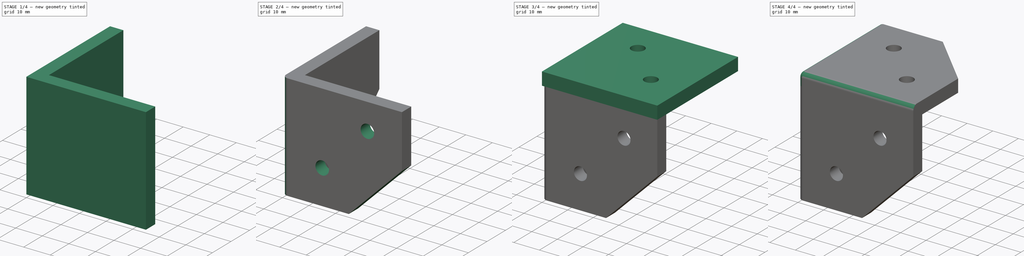
[diagram: build sequence overview — one tinted view per stage of 4, left to right]
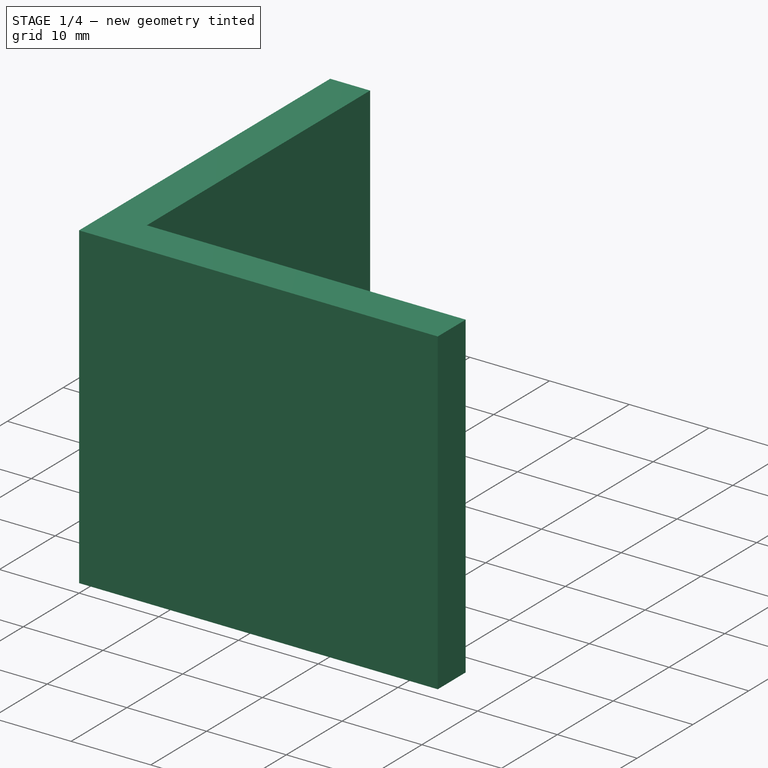
[diagram: stage 1 of 4 — iso view after this stage's code; geometry added in this stage tinted green]
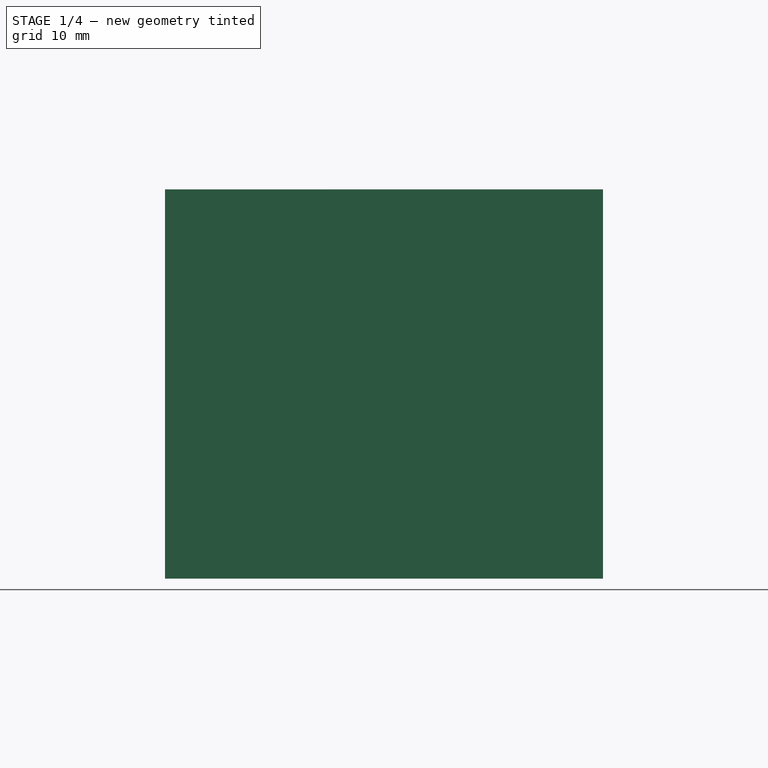
[diagram: stage 1 of 4 — front view after this stage's code; geometry added in this stage tinted green]
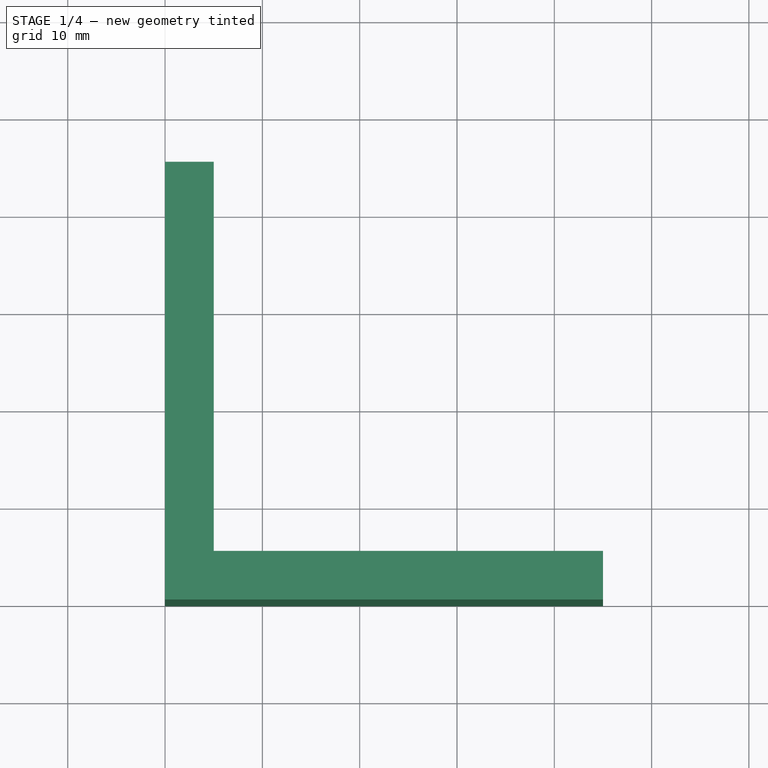
[diagram: stage 1 of 4 — top view after this stage's code; geometry added in this stage tinted green]
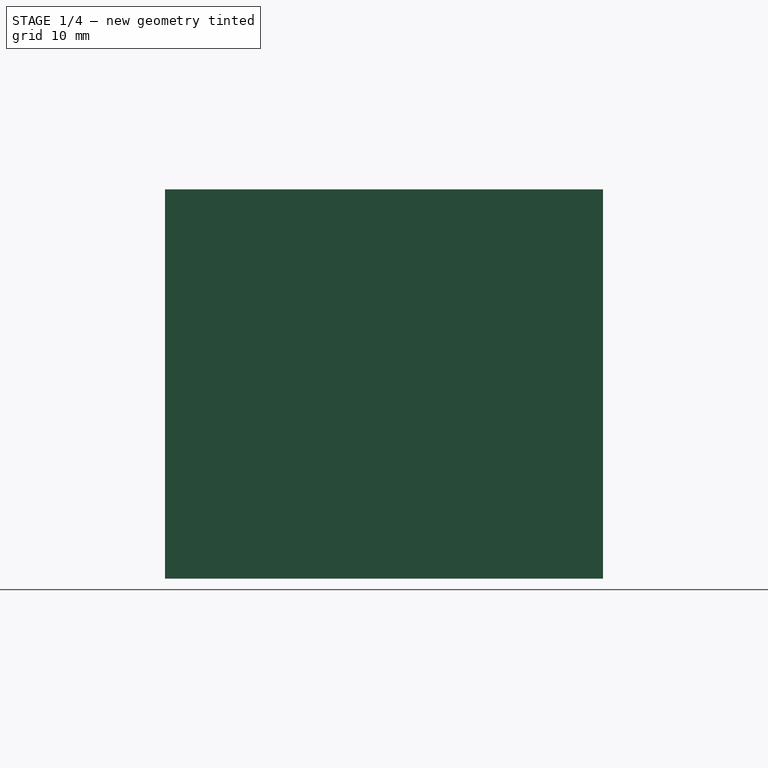
[diagram: stage 1 of 4 — right view after this stage's code; geometry added in this stage tinted green]
FCSTD DOCUMENT  (FreeCAD 0.16R6706 (Git))
Label: ends
License: All rights reserved
LicenseURL: http://en.wikipedia.org/wiki/All_rights_reserved
objects: Part::Box×3, Sketcher::SketchObject×3, PartDesign::Pocket×3, PartDesign::Fillet×3, PartDesign::Chamfer×2, Part::Cut×1
note: 18 computed .brp shape members not serialized (recipe doc carries the construction recipe); baked Part::Feature solids carry a one-line shape summary decoded from their .brp

FEATURE [Part::Box] Box001  label="Cube001"
  Height = 40
  Length = 45
  Placement = pos=(0,0,-40) rot=(0,0,1;0rad)
  Width = 45
FEATURE [Part::Box] Box002  label="Cube002"
  Height = 40
  Length = 45
  Placement = pos=(5,5,-40) rot=(0,0,1;0rad)
  Width = 45
FEATURE [Part::Cut] Cut
  Base = -> Box001
  Tool = -> Box002
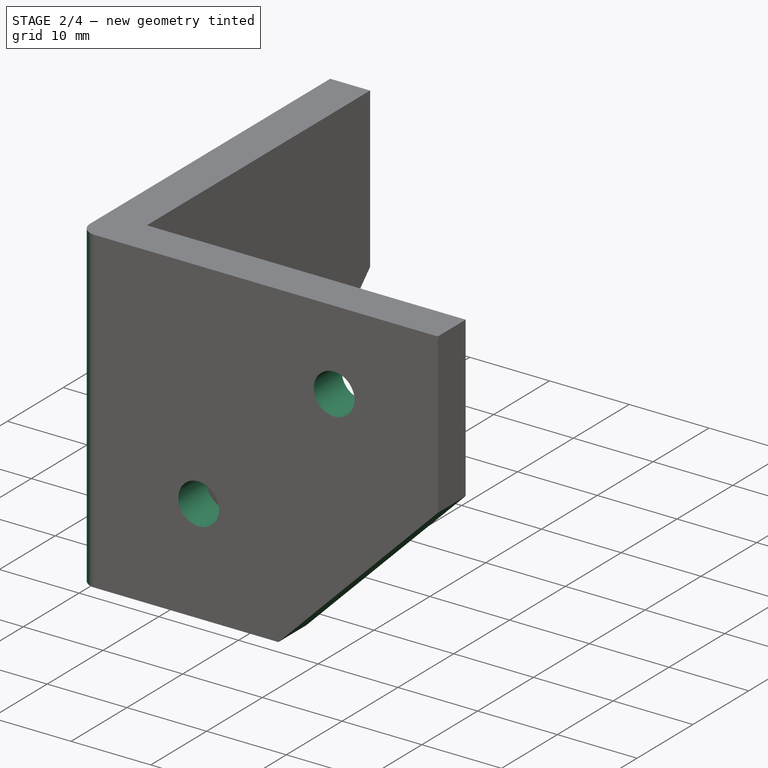
[diagram: stage 2 of 4 — iso view after this stage's code; geometry added in this stage tinted green]
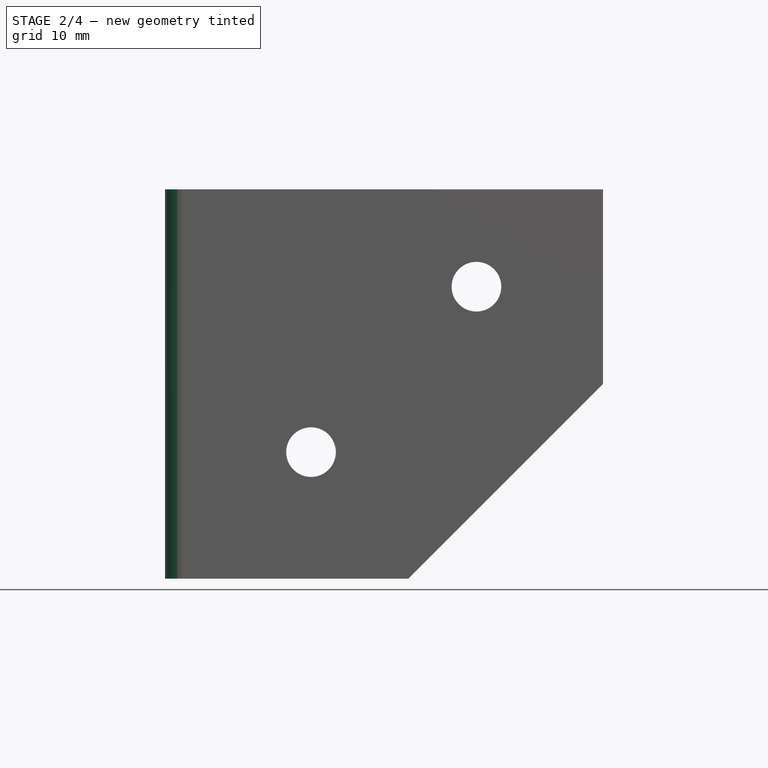
[diagram: stage 2 of 4 — front view after this stage's code; geometry added in this stage tinted green]
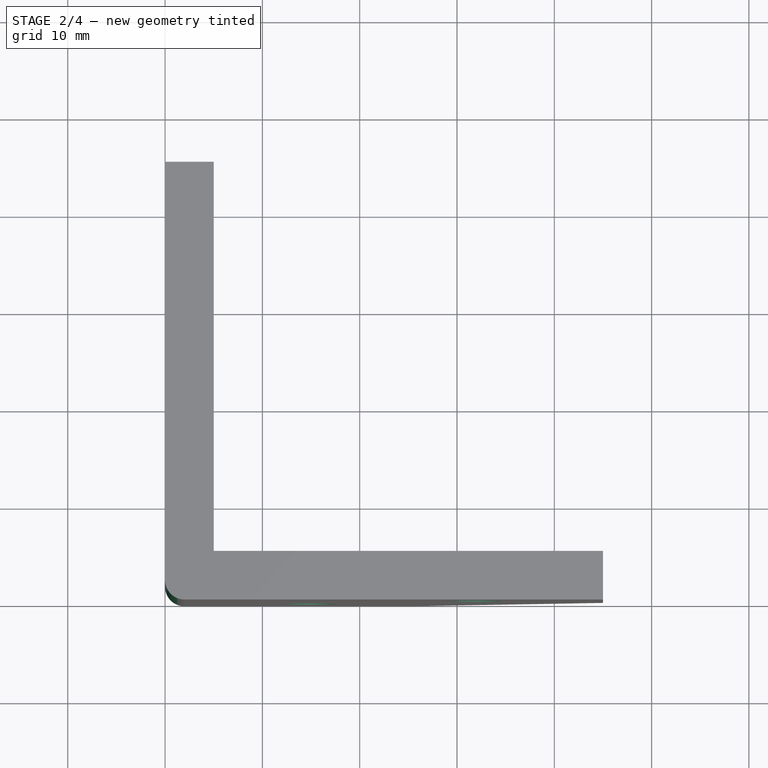
[diagram: stage 2 of 4 — top view after this stage's code; geometry added in this stage tinted green]
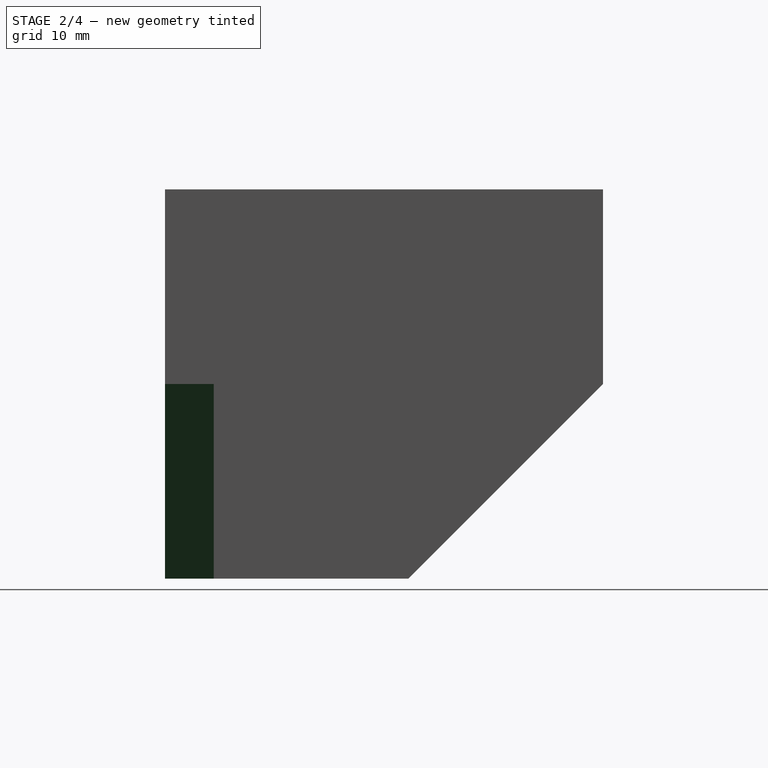
[diagram: stage 2 of 4 — right view after this stage's code; geometry added in this stage tinted green]
FEATURE [PartDesign::Fillet] Fillet002
  Base = -> Cut [Edge1]
  Radius = 2
FEATURE [PartDesign::Chamfer] Chamfer001
  Base = -> Fillet002 [Edge16,Edge13]
  Size = 20
FEATURE [Sketcher::SketchObject] Sketch
  Placement = pos=(0,0,0) rot=(1,0,0;1.5708rad)
  Support = -> Chamfer001 [Face8]
  sketch-geometry (2):
    g0: Circle CenterX=32 CenterY=-10 CenterZ=0 NormalX=0 NormalY=0 NormalZ=1 Radius=2.55
    g1: Circle CenterX=15 CenterY=-27 CenterZ=0 NormalX=0 NormalY=0 NormalZ=1 Radius=2.55
  constraints (6):
    c: Radius(g1) = 2.55
    c: Equal(g1,g0)
    c: DistanceX(g-2,g1) = 15
    c: DistanceY(g-1,g0) = -10
    c: DistanceY(g-1,g1) = -27
    c: DistanceX(g-2,g0) = 32
FEATURE [PartDesign::Pocket] Pocket001
  Length = 5
  Sketch = -> Sketch
  Type = 0
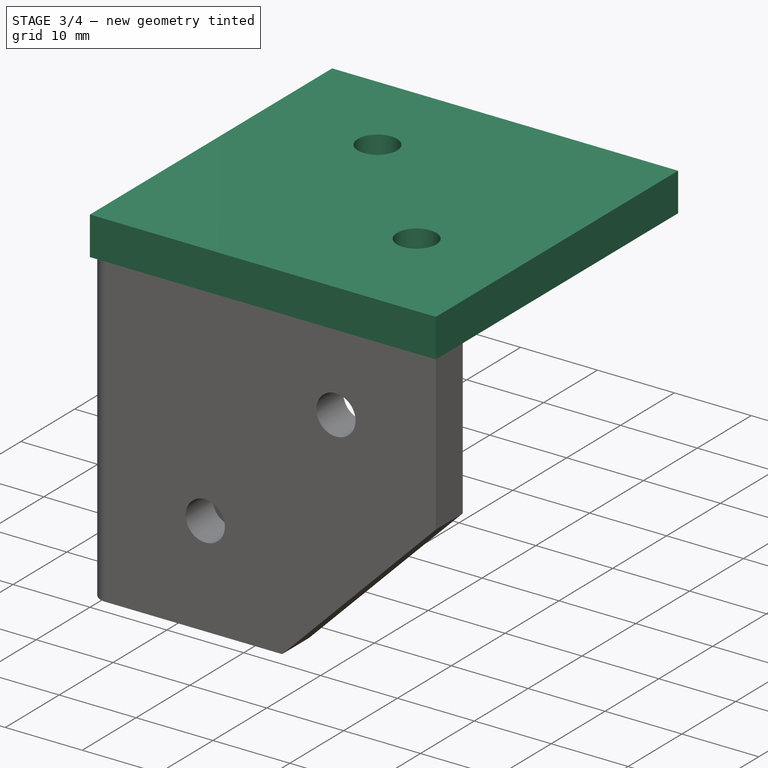
[diagram: stage 3 of 4 — iso view after this stage's code; geometry added in this stage tinted green]
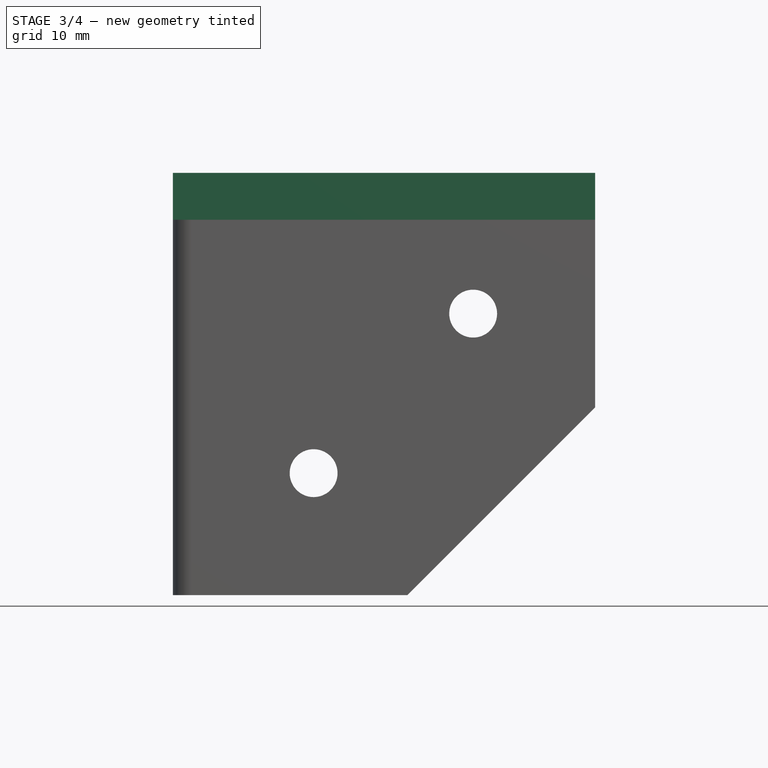
[diagram: stage 3 of 4 — front view after this stage's code; geometry added in this stage tinted green]
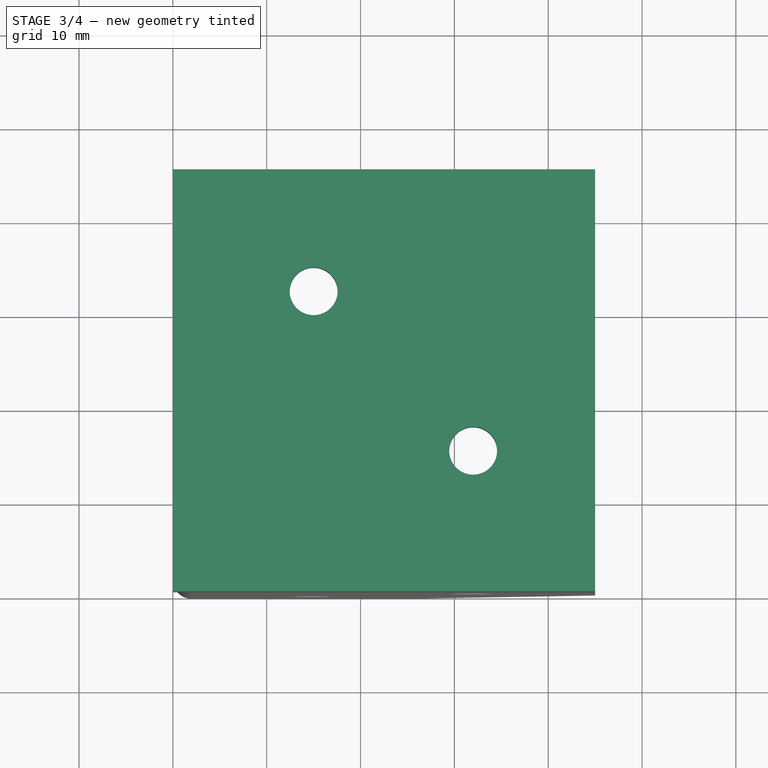
[diagram: stage 3 of 4 — top view after this stage's code; geometry added in this stage tinted green]
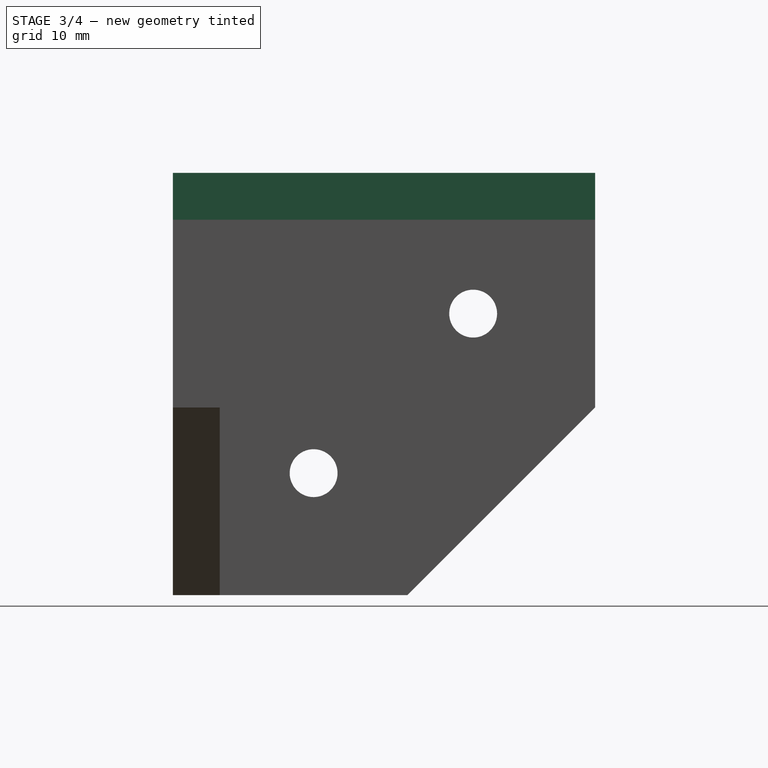
[diagram: stage 3 of 4 — right view after this stage's code; geometry added in this stage tinted green]
FEATURE [Part::Box] Box  label="Cube"
  Height = 5
  Length = 45
  Width = 45
FEATURE [Sketcher::SketchObject] Sketch001
  Placement = pos=(0,0,0) rot=(1,0,0;3.14159rad)
  Support = -> Box [Face5]
  sketch-geometry (2):
    g0: Circle CenterX=15 CenterY=-32 CenterZ=0 NormalX=0 NormalY=0 NormalZ=1 Radius=2.55
    g1: Circle CenterX=32 CenterY=-15 CenterZ=0 NormalX=0 NormalY=0 NormalZ=1 Radius=2.55
  constraints (5):
    c: Radius(g0) = 2.55
    c: DistanceY(g-1,g1) = -15
    c: DistanceX(g-2,g0) = 15
    c: DistanceY(g-1,g0) = -32
    c: DistanceX(g-2,g1) = 32
FEATURE [PartDesign::Pocket] Pocket
  Length = 5
  Sketch = -> Sketch001
  Type = 0
FEATURE [Sketcher::SketchObject] Sketch002
  Placement = pos=(0,0,0) rot=(0.57735,-0.57735,-0.57735;2.0944rad)
  Support = -> Pocket001 [Face1]
  sketch-geometry (2):
    g0: Circle CenterX=-32 CenterY=-10 CenterZ=0 NormalX=0 NormalY=0 NormalZ=1 Radius=2.55
    g1: Circle CenterX=-15 CenterY=-27 CenterZ=0 NormalX=0 NormalY=0 NormalZ=1 Radius=2.55
  constraints (6):
    c: Radius(g1) = 2.55
    c: Equal(g1,g0)
    c: DistanceY(g-1,g0) = -10
    c: DistanceX(g-2,g1) = -15
    c: DistanceY(g-1,g1) = -27
    c: DistanceX(g-2,g0) = -32
FEATURE [PartDesign::Pocket] Pocket002
  Length = 5
  Sketch = -> Sketch002
  Type = 0
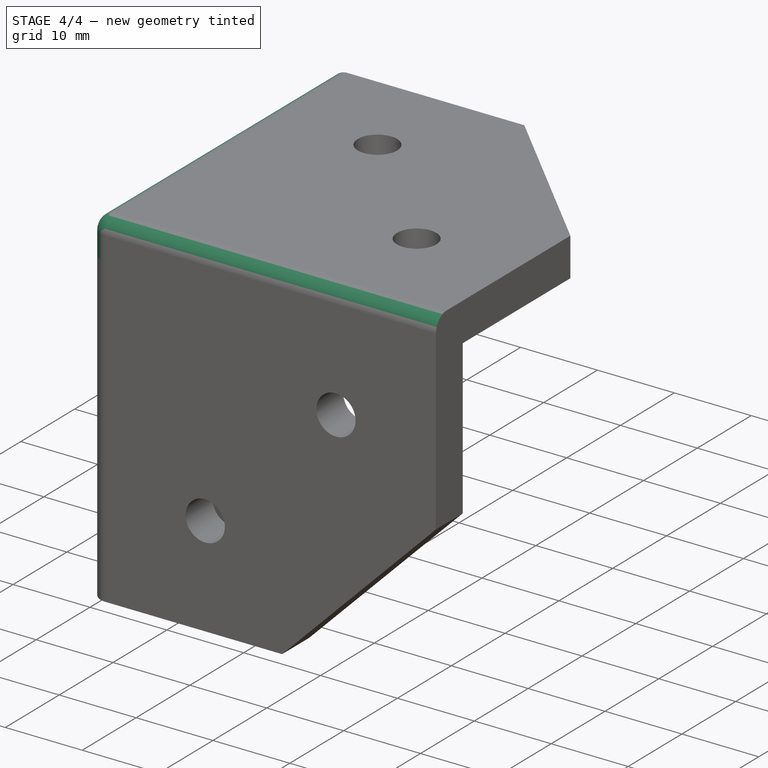
[diagram: stage 4 of 4 — iso view after this stage's code; geometry added in this stage tinted green]
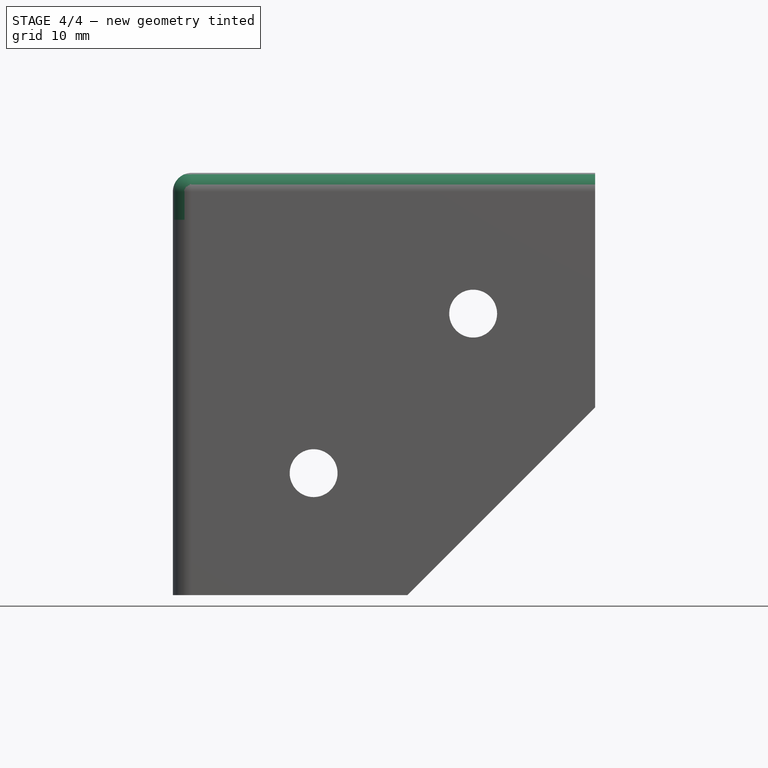
[diagram: stage 4 of 4 — front view after this stage's code; geometry added in this stage tinted green]
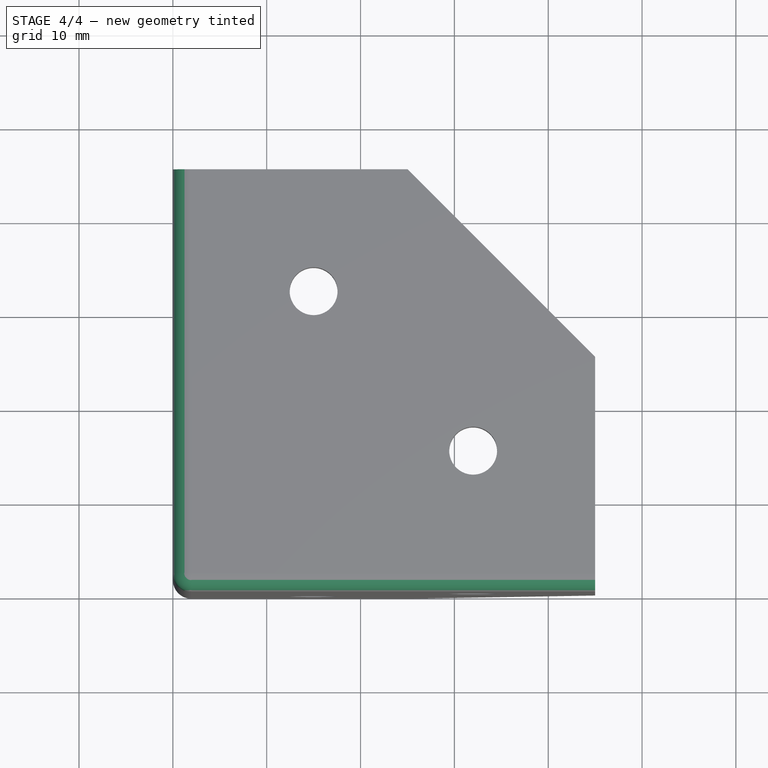
[diagram: stage 4 of 4 — top view after this stage's code; geometry added in this stage tinted green]
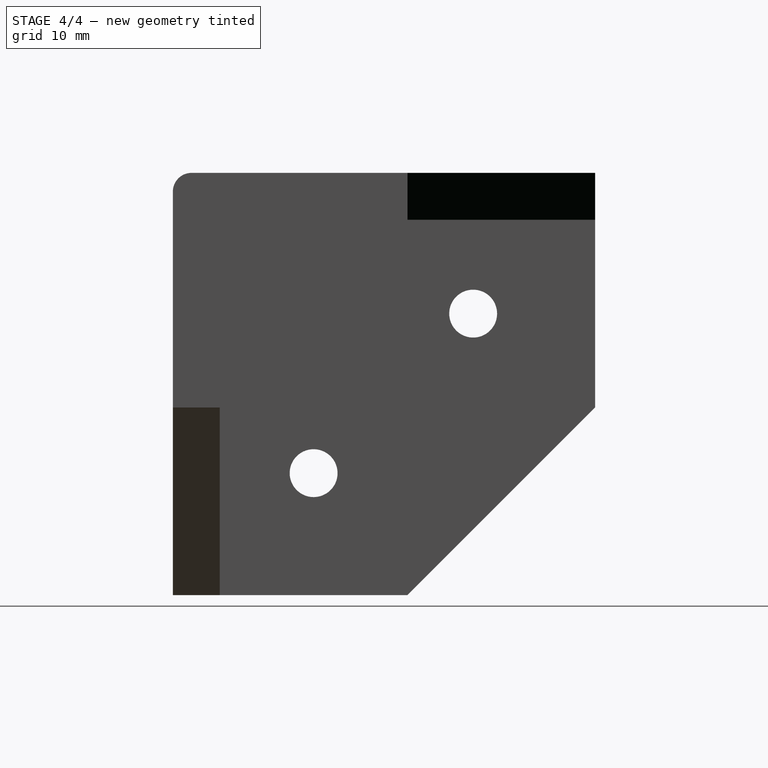
[diagram: stage 4 of 4 — right view after this stage's code; geometry added in this stage tinted green]
FEATURE [PartDesign::Fillet] Fillet
  Base = -> Pocket [Edge1]
  Radius = 2
FEATURE [PartDesign::Fillet] Fillet001
  Base = -> Fillet [Edge1,Edge5,Edge7]
  Radius = 2
FEATURE [PartDesign::Chamfer] Chamfer
  Base = -> Fillet001 [Edge17]
  Size = 20
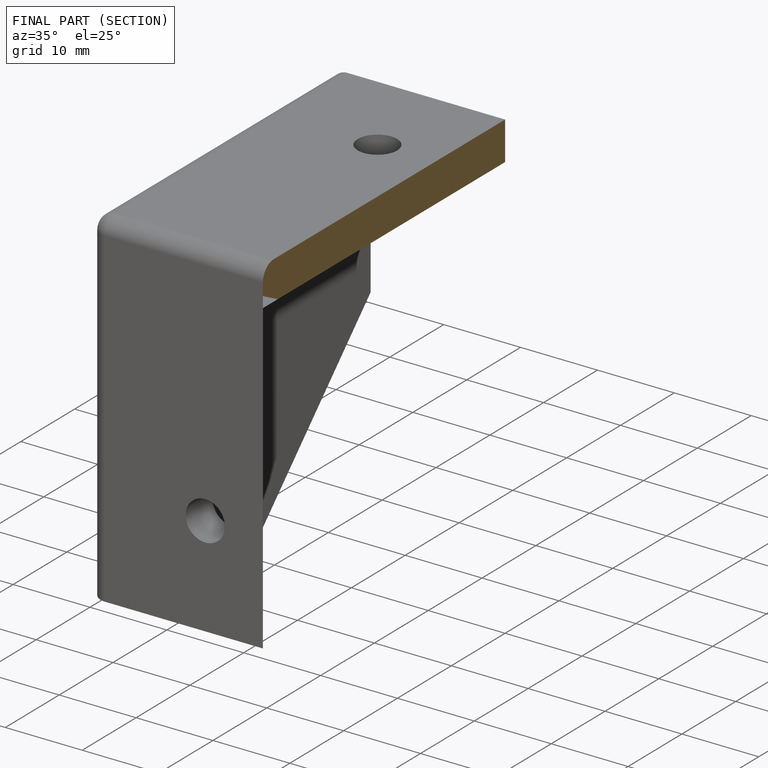
[diagram: finished part — half-section view (interior)]
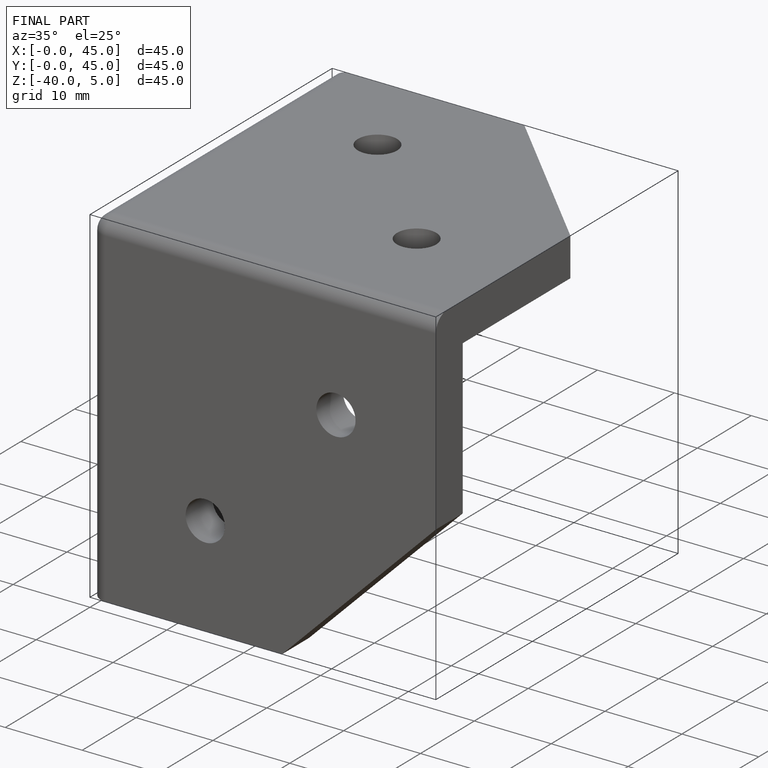
[diagram: finished part — iso view with bounding-box wireframe]
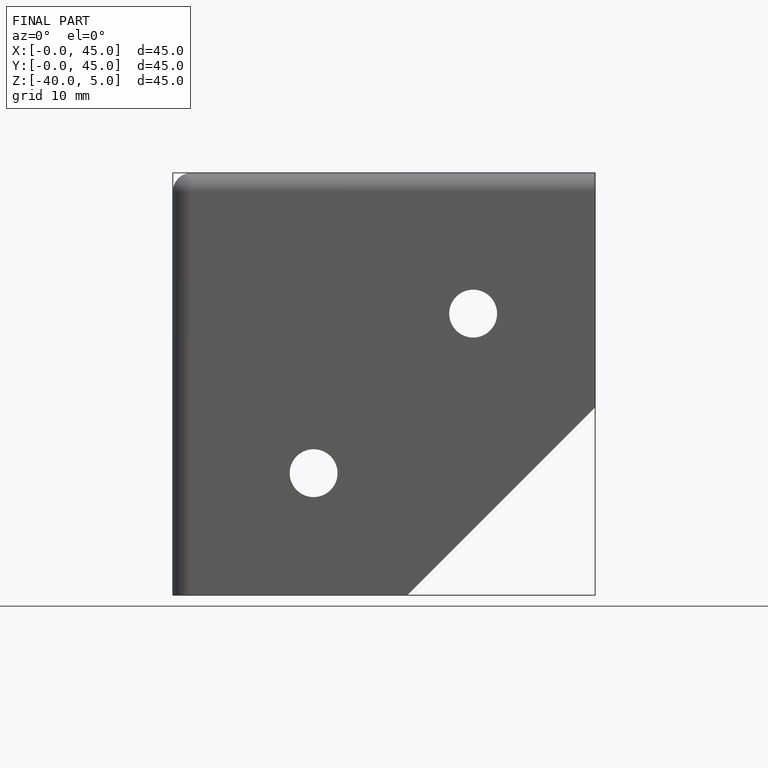
[diagram: finished part — front view with bounding-box wireframe]
